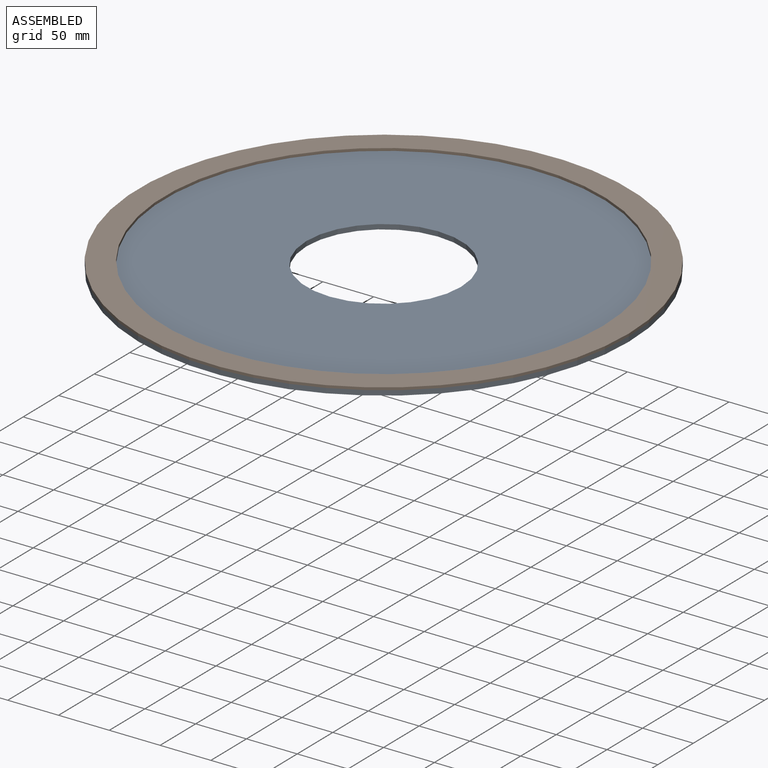
[diagram: assembled view]
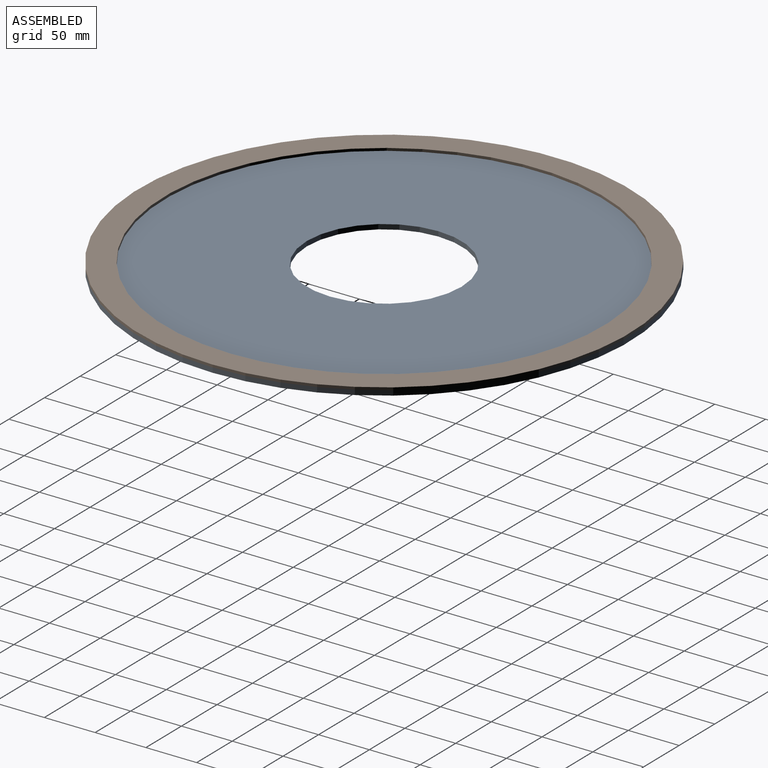
[diagram: assembled view, second angle]
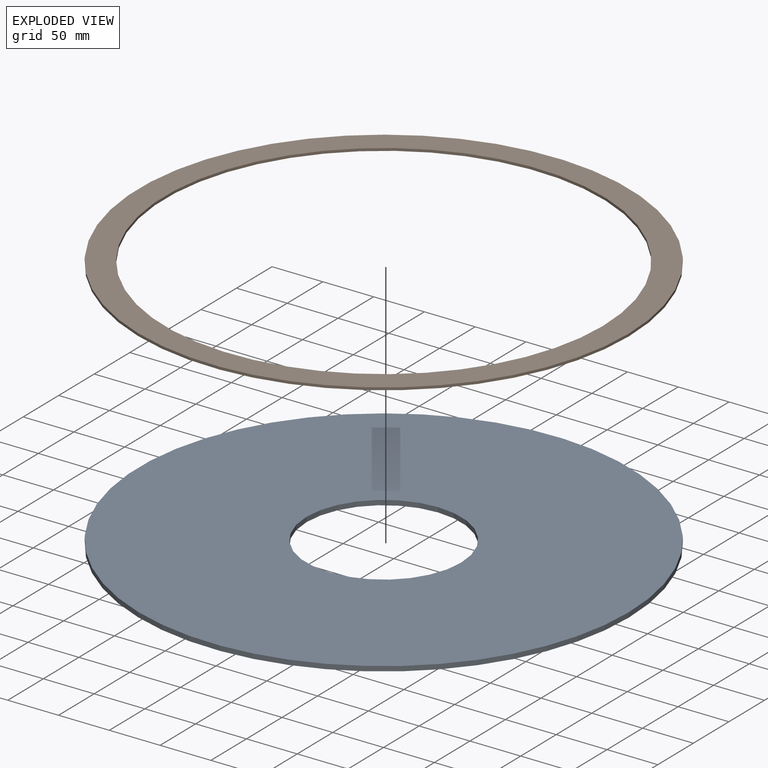
[diagram: exploded view]
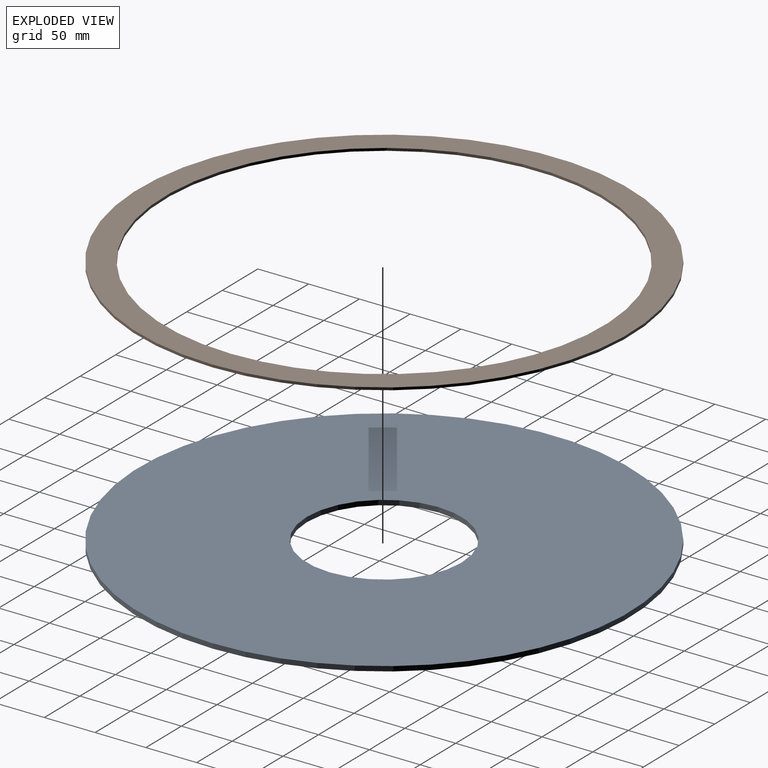
[diagram: exploded view, second angle]
ASSEMBLY  parts=2 mates=2
PART A: 4 faces, bbox 482.6x482.6x4.8 mm
  f0: cylinder r=76.2mm len=152.4mm, axis (0,0,-1), area 2280.2mm2, adj f2,f3
  f1: cylinder r=241.3mm len=482.6mm, axis (0,0,-1), area 7220.6mm2, adj f2,f3
  f2: plane 482.6x482.6mm, normal (0,0,1), area 164679.9mm2, adj f0,f1
  f3: plane 482.6x482.6mm, normal (0,0,-1), area 164679.9mm2, adj f0,f1
PART B: 4 faces, bbox 482.6x482.6x2.5 mm
  f0: cylinder r=215.9mm len=431.8mm, axis (0,0,-1), area 3445.6mm2, adj f2,f3
  f1: cylinder r=241.3mm len=482.6mm, axis (0,0,-1), area 3851mm2, adj f2,f3
  f2: plane 482.6x482.6mm, normal (0,0,1), area 36482.9mm2, adj f0,f1
  f3: plane 482.6x482.6mm, normal (0,0,-1), area 36482.9mm2, adj f0,f1
PLACE A t=(-158.77,-201.57,-3.65)mm
PLACE B t=(-158.77,-201.57,-3.65)mm
MATE cylindrical A.f0 <-> B.f0  axis (0,0,-1) through (-158.77,-201.57,-3.65)mm
MATE planar A.f1 <-> B.f1  axis (0,0,1) through (-158.77,-201.57,1.11)mm
